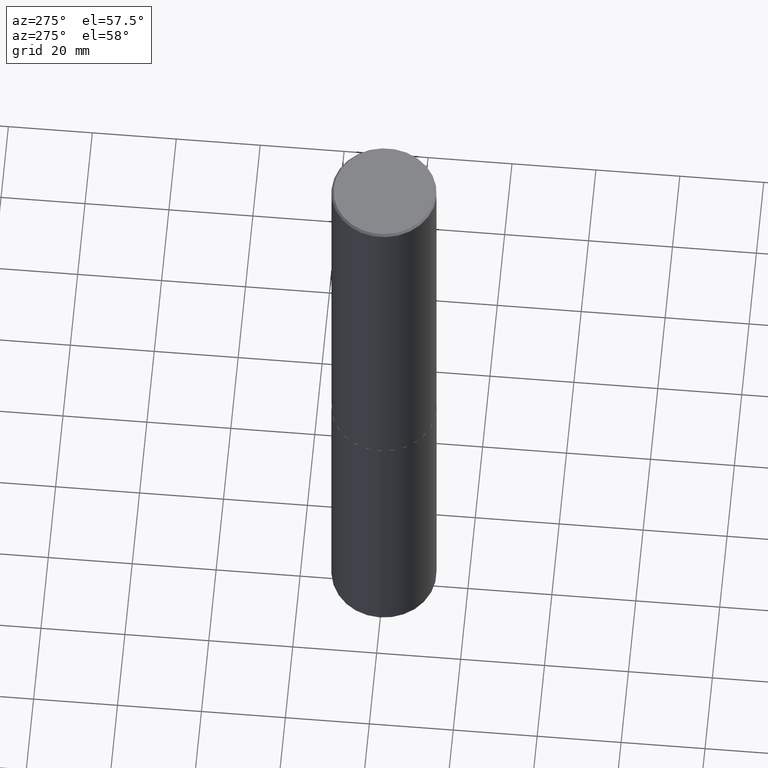
[diagram: clean part render]
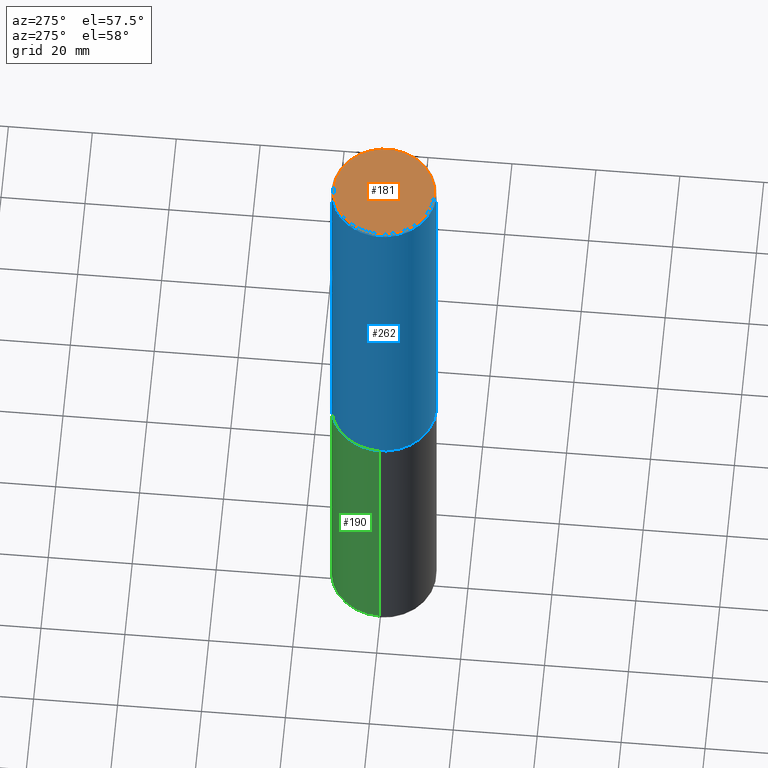
[diagram: same view with three faces highlighted in distinct colors, each labeled with its STEP entity id]
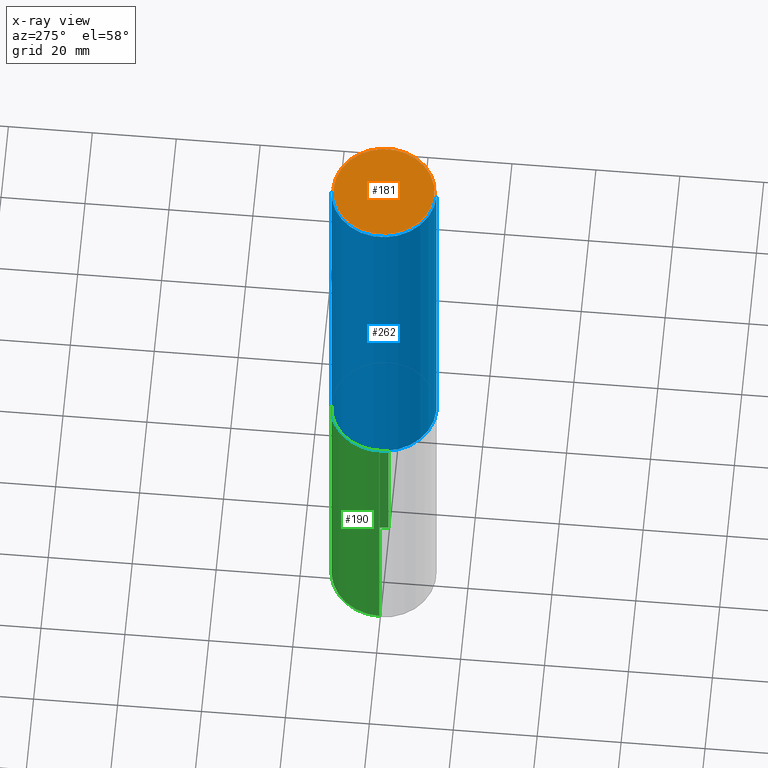
[diagram: x-ray of the same camera — body ghosted, the three highlighted faces saturated]
A machine part, auxiliary view with three faces highlighted in distinct colors.
The next image is the same camera in x-ray (body ghosted, the three faces saturated) — at least one of them is partly hidden behind the body in this view.
Their STEP definitions:

[orange] entity #181 — the highlighted planar face has unit normal (0, -0, -1).
#36 = EDGE_LOOP ( 'NONE', ( #243, #312 ) ) ;
#47 = VERTEX_POINT ( 'NONE', #341 ) ;
#50 = AXIS2_PLACEMENT_3D ( 'NONE', #129, #96, #352 ) ;
#96 = DIRECTION ( 'NONE',  ( -2.445976594451651952E-29, 3.490754157143982552E-15, 1.000000000000000000 ) ) ;
#99 = VERTEX_POINT ( 'NONE', #345 ) ;
#115 = PLANE ( 'NONE',  #318 ) ;
#116 = CIRCLE ( 'NONE', #371, 0.4721499999999996255 ) ;
#117 = CARTESIAN_POINT ( 'NONE',  ( 3.297005828269567997E-15, 0.4721499999999996255, -1.537349919972549256E-15 ) ) ;
#118 = DIRECTION ( 'NONE',  ( 2.445976594451651392E-29, -3.490754157143982552E-15, -1.000000000000000000 ) ) ;
#129 = CARTESIAN_POINT ( 'NONE',  ( -5.420756467185317189E-45, 7.736185299407739239E-31, 2.216193106459615290E-16 ) ) ;
#174 = EDGE_CURVE ( 'NONE', #47, #99, #116, .T. ) ;
#181 = ADVANCED_FACE ( 'NONE', ( #311 ), #115, .F. ) ;
#184 = DIRECTION ( 'NONE',  ( -2.445976594451651952E-29, 3.490754157143982552E-15, 1.000000000000000000 ) ) ;
#217 = CARTESIAN_POINT ( 'NONE',  ( -5.420756467185317189E-45, 7.736185299407739239E-31, 2.216193106459615290E-16 ) ) ;
#243 = ORIENTED_EDGE ( 'NONE', *, *, #393, .T. ) ;
#249 = DIRECTION ( 'NONE',  ( 6.982962677686265922E-15, 1.000000000000000000, -3.490754157143982552E-15 ) ) ;
#311 = FACE_OUTER_BOUND ( 'NONE', #36, .T. ) ;
#312 = ORIENTED_EDGE ( 'NONE', *, *, #174, .T. ) ;
#318 = AXIS2_PLACEMENT_3D ( 'NONE', #117, #118, #249 ) ;
#341 = CARTESIAN_POINT ( 'NONE',  ( -3.307789109625541747E-15, -0.4721499999999996255, 1.869778885941491673E-15 ) ) ;
#345 = CARTESIAN_POINT ( 'NONE',  ( 3.366835455046432084E-15, 0.4721499999999996255, -1.426540264649568516E-15 ) ) ;
#348 = DIRECTION ( 'NONE',  ( -6.982962677686265922E-15, -1.000000000000000000, 3.490754157143982946E-15 ) ) ;
#350 = CIRCLE ( 'NONE', #50, 0.4721499999999996255 ) ;
#352 = DIRECTION ( 'NONE',  ( -6.982962677686265922E-15, -1.000000000000000000, 3.490754157143982946E-15 ) ) ;
#371 = AXIS2_PLACEMENT_3D ( 'NONE', #217, #184, #348 ) ;
#393 = EDGE_CURVE ( 'NONE', #99, #47, #350, .T. ) ;

[blue] entity #262 — the highlighted cylindrical surface (partial cylindrical patch) has radius 12.5006 mm, axis along (-0, 0, 1).
#12 = ORIENTED_EDGE ( 'NONE', *, *, #159, .F. ) ;
#14 = VECTOR ( 'NONE', #324, 39.37007874015748143 ) ;
#15 = VERTEX_POINT ( 'NONE', #89 ) ;
#22 = AXIS2_PLACEMENT_3D ( 'NONE', #122, #254, #326 ) ;
#40 = VERTEX_POINT ( 'NONE', #220 ) ;
#42 = EDGE_LOOP ( 'NONE', ( #114, #79, #43, #12 ) ) ;
#43 = ORIENTED_EDGE ( 'NONE', *, *, #202, .T. ) ;
#49 = DIRECTION ( 'NONE',  ( -2.445976594451651952E-29, 3.490754157143982552E-15, 1.000000000000000000 ) ) ;
#56 = CYLINDRICAL_SURFACE ( 'NONE', #22, 0.4921500000000000874 ) ;
#79 = ORIENTED_EDGE ( 'NONE', *, *, #186, .T. ) ;
#89 = CARTESIAN_POINT ( 'NONE',  ( -3.376394089603257868E-15, -0.4921499999999999764, -0.01999999999999839059 ) ) ;
#95 = CARTESIAN_POINT ( 'NONE',  ( 3.496936074043333291E-15, 0.4921500000000000874, -1.717974658438411319E-15 ) ) ;
#108 = CARTESIAN_POINT ( 'NONE',  ( 3.436665081823295777E-15, 0.4921499999999998098, -0.02000000000000182188 ) ) ;
#114 = ORIENTED_EDGE ( 'NONE', *, *, #223, .F. ) ;
#119 = CARTESIAN_POINT ( 'NONE',  ( 4.891953188903329688E-31, -6.981508314288001687E-17, -0.02000000000000010797 ) ) ;
#122 = CARTESIAN_POINT ( 'NONE',  ( 0.000000000000000000, 0.000000000000000000, 0.000000000000000000 ) ) ;
#131 = DIRECTION ( 'NONE',  ( -2.445976594451651672E-29, 3.490754157143982552E-15, 1.000000000000000000 ) ) ;
#144 = AXIS2_PLACEMENT_3D ( 'NONE', #119, #49, #221 ) ;
#156 = DIRECTION ( 'NONE',  ( -2.445976594451651952E-29, 3.490754157143982552E-15, 1.000000000000000000 ) ) ;
#159 = EDGE_CURVE ( 'NONE', #392, #15, #339, .T. ) ;
#170 = FACE_OUTER_BOUND ( 'NONE', #42, .T. ) ;
#186 = EDGE_CURVE ( 'NONE', #40, #308, #251, .T. ) ;
#201 = LINE ( 'NONE', #95, #14 ) ;
#202 = EDGE_CURVE ( 'NONE', #308, #15, #260, .T. ) ;
#220 = CARTESIAN_POINT ( 'NONE',  ( 3.496936074043380229E-15, 0.4921499999999873198, -3.739100000000002311 ) ) ;
#221 = DIRECTION ( 'NONE',  ( -6.982962677686265922E-15, -1.000000000000000000, 3.486624039460257331E-15 ) ) ;
#223 = EDGE_CURVE ( 'NONE', #40, #392, #201, .T. ) ;
#245 = DIRECTION ( 'NONE',  ( -6.982962677686265922E-15, -1.000000000000000000, 3.330506545156063496E-15 ) ) ;
#251 = CIRCLE ( 'NONE', #376, 0.4921500000000003650 ) ;
#254 = DIRECTION ( 'NONE',  ( -2.445976594451651952E-29, 3.490754157143982552E-15, 1.000000000000000000 ) ) ;
#260 = LINE ( 'NONE', #292, #369 ) ;
#262 = ADVANCED_FACE ( 'NONE', ( #170 ), #56, .T. ) ;
#292 = CARTESIAN_POINT ( 'NONE',  ( -3.436665081823296565E-15, -0.4921500000000000874, 1.717974658438411319E-15 ) ) ;
#308 = VERTEX_POINT ( 'NONE', #322 ) ;
#322 = CARTESIAN_POINT ( 'NONE',  ( -3.436665081823207030E-15, -0.4921500000000134101, -3.739099999999998758 ) ) ;
#324 = DIRECTION ( 'NONE',  ( -2.445976594451651672E-29, 3.490754157143982552E-15, 1.000000000000000000 ) ) ;
#326 = DIRECTION ( 'NONE',  ( -6.982962677686265922E-15, -1.000000000000000000, 3.490754157143982552E-15 ) ) ;
#339 = CIRCLE ( 'NONE', #144, 0.4921499999999999209 ) ;
#369 = VECTOR ( 'NONE', #131, 39.37007874015748143 ) ;
#373 = CARTESIAN_POINT ( 'NONE',  ( 9.145751084314172604E-29, -1.305227886897706845E-14, -3.739100000000000534 ) ) ;
#376 = AXIS2_PLACEMENT_3D ( 'NONE', #373, #156, #245 ) ;
#392 = VERTEX_POINT ( 'NONE', #108 ) ;

[green] entity #190 — the highlighted cylindrical surface (partial cylindrical patch) has radius 12.5006 mm, axis along (-0, 0, 1).
#8 = ORIENTED_EDGE ( 'NONE', *, *, #182, .F. ) ;
#16 = VERTEX_POINT ( 'NONE', #20 ) ;
#20 = CARTESIAN_POINT ( 'NONE',  ( -0.4921499999999999764, -1.457898653934845976E-14, -3.740100000000000424 ) ) ;
#27 = DIRECTION ( 'NONE',  ( 1.000000000000000000, -6.982962677686265922E-15, 4.876176775795935793E-29 ) ) ;
#48 = DIRECTION ( 'NONE',  ( -2.445468806185136597E-29, 3.491481338843145583E-15, 1.000000000000000000 ) ) ;
#54 = CARTESIAN_POINT ( 'NONE',  ( 9.146297882013029477E-29, -1.305848935540725085E-14, -3.740100000000000424 ) ) ;
#58 = CARTESIAN_POINT ( 'NONE',  ( 0.4921499999999999764, -2.653002095319962551E-14, -6.614199999999999413 ) ) ;
#65 = CIRCLE ( 'NONE', #270, 0.4921499999999999764 ) ;
#73 = ORIENTED_EDGE ( 'NONE', *, *, #306, .T. ) ;
#85 = CYLINDRICAL_SURFACE ( 'NONE', #179, 0.4921499999999999764 ) ;
#133 = EDGE_CURVE ( 'NONE', #310, #16, #402, .T. ) ;
#141 = ORIENTED_EDGE ( 'NONE', *, *, #133, .T. ) ;
#149 = CARTESIAN_POINT ( 'NONE',  ( -0.4921499999999999764, 3.496936074043332897E-15, -2.420853904668951509E-29 ) ) ;
#150 = DIRECTION ( 'NONE',  ( -2.445468806185136877E-29, 3.491481338843145188E-15, 1.000000000000000000 ) ) ;
#154 = VECTOR ( 'NONE', #150, 39.37007874015748143 ) ;
#162 = DIRECTION ( 'NONE',  ( 1.000000000000000000, -6.982962677686266711E-15, 0.000000000000000000 ) ) ;
#179 = AXIS2_PLACEMENT_3D ( 'NONE', #216, #48, #27 ) ;
#182 = EDGE_CURVE ( 'NONE', #320, #16, #65, .T. ) ;
#189 = DIRECTION ( 'NONE',  ( -2.445468806185136597E-29, 3.491481338843145583E-15, 1.000000000000000000 ) ) ;
#190 = ADVANCED_FACE ( 'NONE', ( #370 ), #85, .T. ) ;
#193 = LINE ( 'NONE', #256, #386 ) ;
#195 = CARTESIAN_POINT ( 'NONE',  ( 1.617481977786973037E-28, -2.309335587137633131E-14, -6.614199999999999413 ) ) ;
#205 = ORIENTED_EDGE ( 'NONE', *, *, #274, .F. ) ;
#216 = CARTESIAN_POINT ( 'NONE',  ( 0.000000000000000000, 0.000000000000000000, 0.000000000000000000 ) ) ;
#222 = DIRECTION ( 'NONE',  ( -2.445468806185136597E-29, 3.491481338843145583E-15, 1.000000000000000000 ) ) ;
#231 = AXIS2_PLACEMENT_3D ( 'NONE', #195, #222, #162 ) ;
#256 = CARTESIAN_POINT ( 'NONE',  ( 0.4921499999999999764, -3.436665081823295777E-15, 2.399810400207969603E-29 ) ) ;
#264 = DIRECTION ( 'NONE',  ( -2.445468806185136877E-29, 3.491481338843145188E-15, 1.000000000000000000 ) ) ;
#270 = AXIS2_PLACEMENT_3D ( 'NONE', #54, #189, #316 ) ;
#274 = EDGE_CURVE ( 'NONE', #301, #320, #193, .T. ) ;
#301 = VERTEX_POINT ( 'NONE', #58 ) ;
#306 = EDGE_CURVE ( 'NONE', #301, #310, #317, .T. ) ;
#310 = VERTEX_POINT ( 'NONE', #383 ) ;
#316 = DIRECTION ( 'NONE',  ( 1.000000000000000000, -6.982962677686265922E-15, 0.000000000000000000 ) ) ;
#317 = CIRCLE ( 'NONE', #231, 0.4921499999999999209 ) ;
#320 = VERTEX_POINT ( 'NONE', #385 ) ;
#334 = EDGE_LOOP ( 'NONE', ( #73, #141, #8, #205 ) ) ;
#370 = FACE_OUTER_BOUND ( 'NONE', #334, .T. ) ;
#383 = CARTESIAN_POINT ( 'NONE',  ( -0.4921499999999999764, -1.959641979733300078E-14, -6.614199999999999413 ) ) ;
#385 = CARTESIAN_POINT ( 'NONE',  ( 0.4921499999999999764, -1.649515443723054663E-14, -3.740100000000000424 ) ) ;
#386 = VECTOR ( 'NONE', #264, 39.37007874015748143 ) ;
#402 = LINE ( 'NONE', #149, #154 ) ;